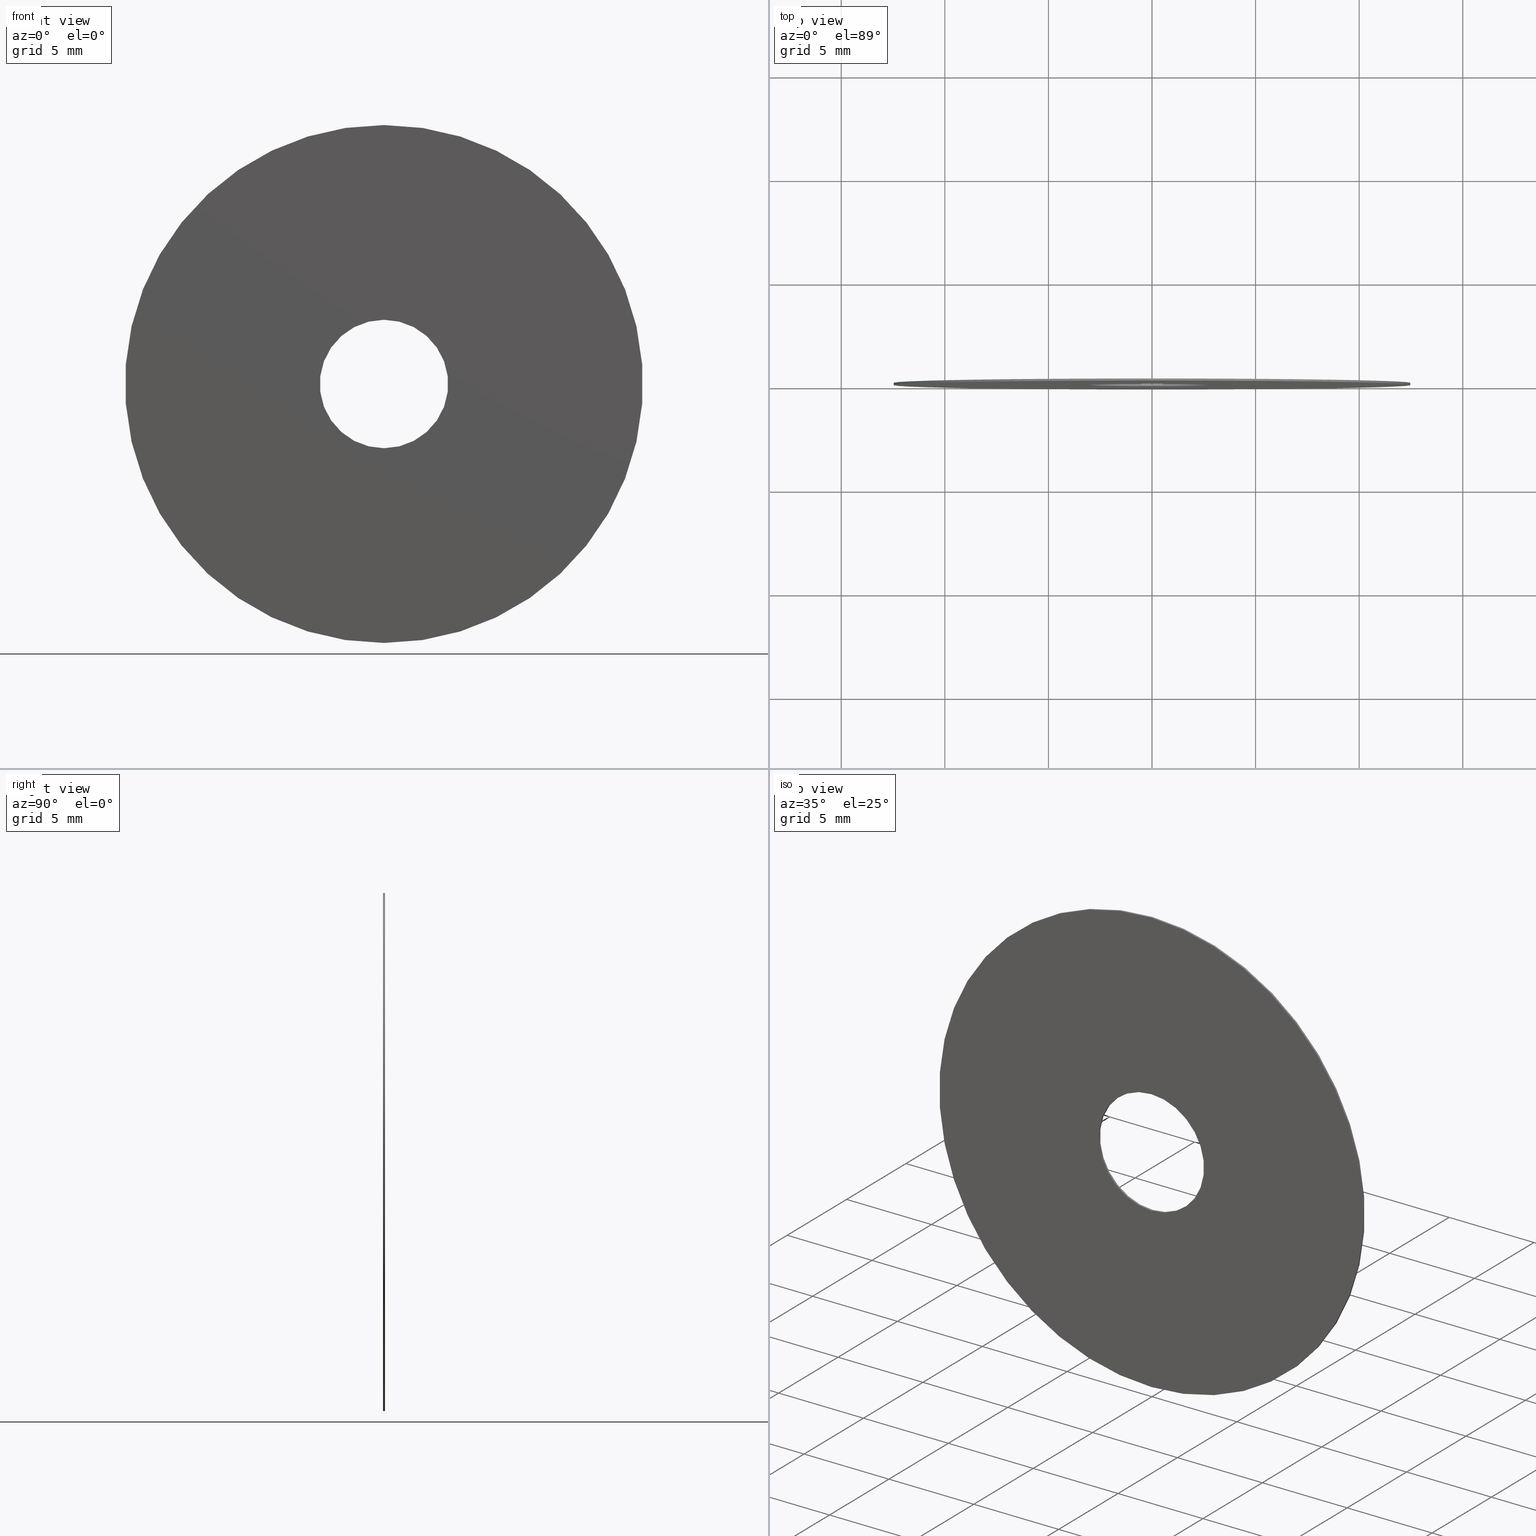
[diagram: canonical four-view strip — front | top / right | iso, engineering-drawing reading convention]
A machine part, canonical four-view strip (front | top / right | iso — engineering-drawing reading convention). The complete STEP part file that produces these views, byte-faithful:
ISO-10303-21;
HEADER;
FILE_DESCRIPTION (( 'STEP AP203' ),
    '1' );
FILE_NAME ('1.4.2.128-ZGH-25-DK0.1.STEP',
    '2024-04-06T05:15:39',
    ( '' ),
    ( '' ),
    'SwSTEP 2.0',
    'SolidWorks 2021',
    '' );
FILE_SCHEMA (( 'CONFIG_CONTROL_DESIGN' ));
ENDSEC;

DATA;
#1 = CALENDAR_DATE ( 2024, 6, 4 ) ;
#2 = DIRECTION ( 'NONE',  ( 0.000000000000000000, 1.000000000000000000, 0.000000000000000000 ) ) ;
#3 = EDGE_LOOP ( 'NONE', ( #98, #229, #65, #97 ) ) ;
#4 = EDGE_CURVE ( 'NONE', #136, #37, #45, .T. ) ;
#5 = PERSON_AND_ORGANIZATION ( #171, #106 ) ;
#6 = LOCAL_TIME ( 13, 15, 39.00000000000000000, #147 ) ;
#7 = EDGE_CURVE ( 'NONE', #109, #55, #134, .T. ) ;
#8 = FACE_BOUND ( 'NONE', #151, .T. ) ;
#9 = ORIENTED_EDGE ( 'NONE', *, *, #94, .F. ) ;
#10 = AXIS2_PLACEMENT_3D ( 'NONE', #63, #46, #199 ) ;
#11 = CARTESIAN_POINT ( 'NONE',  ( 0.000000000000000000, 0.05000000000000000278, -12.50000000000000000 ) ) ;
#12 = PERSON_AND_ORGANIZATION ( #171, #106 ) ;
#13 = DIRECTION ( 'NONE',  ( -0.000000000000000000, -1.000000000000000000, -0.000000000000000000 ) ) ;
#14 = APPLICATION_PROTOCOL_DEFINITION ( 'international standard', 'config_control_design', 1994, #185 ) ;
#15 = CIRCLE ( 'NONE', #194, 12.50000000000000000 ) ;
#16 = CC_DESIGN_PERSON_AND_ORGANIZATION_ASSIGNMENT ( #100, #187, ( #193 ) ) ;
#17 = DIRECTION ( 'NONE',  ( 0.000000000000000000, -0.000000000000000000, 1.000000000000000000 ) ) ;
#18 = CARTESIAN_POINT ( 'NONE',  ( 0.000000000000000000, -0.05000000000000000278, 0.000000000000000000 ) ) ;
#19 = CC_DESIGN_DATE_AND_TIME_ASSIGNMENT ( #170, #127, ( #30 ) ) ;
#20 = AXIS2_PLACEMENT_3D ( 'NONE', #169, #13, #122 ) ;
#21 = SECURITY_CLASSIFICATION ( '', '', #208 ) ;
#22 = PERSON_AND_ORGANIZATION_ROLE ( 'creator' ) ;
#23 = ORIENTED_EDGE ( 'NONE', *, *, #72, .F. ) ;
#24 = ORIENTED_EDGE ( 'NONE', *, *, #7, .F. ) ;
#25 = ORIENTED_EDGE ( 'NONE', *, *, #47, .T. ) ;
#26 = CIRCLE ( 'NONE', #149, 3.100000000000000089 ) ;
#27 = APPROVAL ( #210, 'δָ��' ) ;
#28 = DATE_AND_TIME ( #152, #177 ) ;
#29 = CARTESIAN_POINT ( 'NONE',  ( 0.000000000000000000, 0.05000000000000000278, -12.50000000000000000 ) ) ;
#30 = PRODUCT_DEFINITION ( 'δ֪', '', #165, #62 ) ;
#31 = LOCAL_TIME ( 13, 15, 39.00000000000000000, #39 ) ;
#32 = EDGE_LOOP ( 'NONE', ( #142, #225, #75, #148 ) ) ;
#33 = CARTESIAN_POINT ( 'NONE',  ( 3.796405077356794918E-16, 0.05000000000000000278, -3.100000000000000089 ) ) ;
#34 = ADVANCED_FACE ( 'NONE', ( #8, #85 ), #160, .T. ) ;
#35 = PLANE ( 'NONE',  #145 ) ;
#36 = CARTESIAN_POINT ( 'NONE',  ( 0.000000000000000000, 0.05000000000000000278, 3.100000000000000089 ) ) ;
#37 = VERTEX_POINT ( 'NONE', #66 ) ;
#38 = CARTESIAN_POINT ( 'NONE',  ( 0.000000000000000000, 0.000000000000000000, 0.000000000000000000 ) ) ;
#39 = COORDINATED_UNIVERSAL_TIME_OFFSET ( 8, 0, .AHEAD. ) ;
#40 = LOCAL_TIME ( 13, 15, 39.00000000000000000, #191 ) ;
#41 = CC_DESIGN_APPROVAL ( #123, ( #165 ) ) ;
#42 = DIRECTION ( 'NONE',  ( -0.000000000000000000, -1.000000000000000000, -0.000000000000000000 ) ) ;
#43 = CC_DESIGN_PERSON_AND_ORGANIZATION_ASSIGNMENT ( #195, #78, ( #21 ) ) ;
#44 = CALENDAR_DATE ( 2024, 6, 4 ) ;
#45 = LINE ( 'NONE', #11, #129 ) ;
#46 = DIRECTION ( 'NONE',  ( -0.000000000000000000, 1.000000000000000000, -0.000000000000000000 ) ) ;
#47 = EDGE_CURVE ( 'NONE', #49, #221, #119, .T. ) ;
#48 = CARTESIAN_POINT ( 'NONE',  ( 1.530808498934191521E-15, -0.05000000000000000278, 12.50000000000000000 ) ) ;
#49 = VERTEX_POINT ( 'NONE', #242 ) ;
#50 =( GEOMETRIC_REPRESENTATION_CONTEXT ( 3 ) GLOBAL_UNCERTAINTY_ASSIGNED_CONTEXT ( ( #96 ) ) GLOBAL_UNIT_ASSIGNED_CONTEXT ( ( #101, #230, #168 ) ) REPRESENTATION_CONTEXT ( 'NONE', 'WORKASPACE' ) );
#51 = CC_DESIGN_APPROVAL ( #27, ( #21 ) ) ;
#52 = CARTESIAN_POINT ( 'NONE',  ( 0.000000000000000000, -0.05000000000000000278, 0.000000000000000000 ) ) ;
#53 = LINE ( 'NONE', #141, #99 ) ;
#54 = CYLINDRICAL_SURFACE ( 'NONE', #20, 12.50000000000000000 ) ;
#55 = VERTEX_POINT ( 'NONE', #48 ) ;
#56 = DIRECTION ( 'NONE',  ( -0.000000000000000000, -1.000000000000000000, -0.000000000000000000 ) ) ;
#57 = CARTESIAN_POINT ( 'NONE',  ( 0.000000000000000000, 0.05000000000000000278, 0.000000000000000000 ) ) ;
#58 = APPROVAL_ROLE ( '' ) ;
#59 = APPROVAL_PERSON_ORGANIZATION ( #211, #123, #130 ) ;
#60 = DIRECTION ( 'NONE',  ( 0.000000000000000000, -0.000000000000000000, 1.000000000000000000 ) ) ;
#61 = ORIENTED_EDGE ( 'NONE', *, *, #94, .T. ) ;
#62 = DESIGN_CONTEXT ( 'detailed design', #185, 'design' ) ;
#63 = CARTESIAN_POINT ( 'NONE',  ( 0.000000000000000000, -0.05000000000000000278, 0.000000000000000000 ) ) ;
#64 = AXIS2_PLACEMENT_3D ( 'NONE', #121, #204, #87 ) ;
#65 = ORIENTED_EDGE ( 'NONE', *, *, #161, .T. ) ;
#66 = CARTESIAN_POINT ( 'NONE',  ( 0.000000000000000000, -0.05000000000000000278, -12.50000000000000000 ) ) ;
#67 = CYLINDRICAL_SURFACE ( 'NONE', #125, 12.50000000000000000 ) ;
#68 = EDGE_CURVE ( 'NONE', #221, #144, #215, .T. ) ;
#69 = CC_DESIGN_SECURITY_CLASSIFICATION ( #21, ( #165 ) ) ;
#70 = DIRECTION ( 'NONE',  ( 0.000000000000000000, 0.000000000000000000, 1.000000000000000000 ) ) ;
#71 = DIRECTION ( 'NONE',  ( -0.000000000000000000, 1.000000000000000000, -0.000000000000000000 ) ) ;
#72 = EDGE_CURVE ( 'NONE', #136, #109, #198, .T. ) ;
#73 = MECHANICAL_CONTEXT ( 'NONE', #157, 'mechanical' ) ;
#74 = DATE_TIME_ROLE ( 'classification_date' ) ;
#75 = ORIENTED_EDGE ( 'NONE', *, *, #226, .T. ) ;
#76 = CLOSED_SHELL ( 'NONE', ( #180, #197, #236, #34, #207, #153 ) ) ;
#77 = DIRECTION ( 'NONE',  ( 0.000000000000000000, 0.000000000000000000, 1.000000000000000000 ) ) ;
#78 = PERSON_AND_ORGANIZATION_ROLE ( 'classification_officer' ) ;
#79 = EDGE_LOOP ( 'NONE', ( #24, #23, #167, #61 ) ) ;
#80 = APPROVAL_ROLE ( '' ) ;
#81 = CIRCLE ( 'NONE', #95, 12.50000000000000000 ) ;
#82 = CARTESIAN_POINT ( 'NONE',  ( 1.530808498934191521E-15, 0.05000000000000000278, 12.50000000000000000 ) ) ;
#83 = ORIENTED_EDGE ( 'NONE', *, *, #161, .F. ) ;
#84 = VECTOR ( 'NONE', #42, 1000.000000000000000 ) ;
#85 = FACE_OUTER_BOUND ( 'NONE', #209, .T. ) ;
#86 = CYLINDRICAL_SURFACE ( 'NONE', #238, 3.100000000000000089 ) ;
#87 = DIRECTION ( 'NONE',  ( 0.000000000000000000, 0.000000000000000000, 1.000000000000000000 ) ) ;
#88 = DIRECTION ( 'NONE',  ( 0.000000000000000000, 1.000000000000000000, 0.000000000000000000 ) ) ;
#89 = COORDINATED_UNIVERSAL_TIME_OFFSET ( 8, 0, .AHEAD. ) ;
#90 = CARTESIAN_POINT ( 'NONE',  ( 1.530808498934191521E-15, 0.05000000000000000278, 12.50000000000000000 ) ) ;
#91 = DIRECTION ( 'NONE',  ( 0.000000000000000000, 0.000000000000000000, 1.000000000000000000 ) ) ;
#92 = CALENDAR_DATE ( 2024, 6, 4 ) ;
#93 = DIRECTION ( 'NONE',  ( 0.000000000000000000, 1.000000000000000000, 0.000000000000000000 ) ) ;
#94 = EDGE_CURVE ( 'NONE', #37, #55, #15, .T. ) ;
#95 = AXIS2_PLACEMENT_3D ( 'NONE', #200, #2, #234 ) ;
#96 = UNCERTAINTY_MEASURE_WITH_UNIT (LENGTH_MEASURE( 1.000000000000000082E-05 ), #101, 'distance_accuracy_value', 'NONE');
#97 = ORIENTED_EDGE ( 'NONE', *, *, #118, .T. ) ;
#98 = ORIENTED_EDGE ( 'NONE', *, *, #68, .F. ) ;
#99 = VECTOR ( 'NONE', #71, 1000.000000000000000 ) ;
#100 = PERSON_AND_ORGANIZATION ( #171, #106 ) ;
#101 =( LENGTH_UNIT ( ) NAMED_UNIT ( * ) SI_UNIT ( .MILLI., .METRE. ) );
#102 = ORIENTED_EDGE ( 'NONE', *, *, #72, .T. ) ;
#103 = CC_DESIGN_DATE_AND_TIME_ASSIGNMENT ( #28, #74, ( #21 ) ) ;
#104 = DIRECTION ( 'NONE',  ( 1.000000000000000000, 0.000000000000000000, 0.000000000000000000 ) ) ;
#105 = APPROVAL_DATE_TIME ( #233, #27 ) ;
#106 = ORGANIZATION ( 'δָ��', 'δָ��', '' ) ;
#107 = APPROVAL_DATE_TIME ( #133, #232 ) ;
#108 = PERSON_AND_ORGANIZATION ( #171, #106 ) ;
#109 = VERTEX_POINT ( 'NONE', #82 ) ;
#110 = DIRECTION ( 'NONE',  ( 0.000000000000000000, 1.000000000000000000, 0.000000000000000000 ) ) ;
#111 = APPROVAL_DATE_TIME ( #173, #123 ) ;
#112 = EDGE_CURVE ( 'NONE', #109, #136, #81, .T. ) ;
#113 = AXIS2_PLACEMENT_3D ( 'NONE', #115, #214, #77 ) ;
#114 = DIRECTION ( 'NONE',  ( 0.000000000000000000, 1.000000000000000000, 0.000000000000000000 ) ) ;
#115 = CARTESIAN_POINT ( 'NONE',  ( 0.000000000000000000, 0.05000000000000000278, 0.000000000000000000 ) ) ;
#116 = DIRECTION ( 'NONE',  ( 0.000000000000000000, 0.000000000000000000, 1.000000000000000000 ) ) ;
#117 = CARTESIAN_POINT ( 'NONE',  ( 3.796405077356794918E-16, -0.05000000000000000278, -3.100000000000000089 ) ) ;
#118 = EDGE_CURVE ( 'NONE', #239, #144, #26, .T. ) ;
#119 = CIRCLE ( 'NONE', #205, 3.100000000000000089 ) ;
#120 = DIRECTION ( 'NONE',  ( 0.000000000000000000, 1.000000000000000000, 0.000000000000000000 ) ) ;
#121 = CARTESIAN_POINT ( 'NONE',  ( 0.000000000000000000, 0.05000000000000000278, 0.000000000000000000 ) ) ;
#122 = DIRECTION ( 'NONE',  ( 0.000000000000000000, 0.000000000000000000, -1.000000000000000000 ) ) ;
#123 = APPROVAL ( #175, 'δָ��' ) ;
#124 = ORIENTED_EDGE ( 'NONE', *, *, #118, .F. ) ;
#125 = AXIS2_PLACEMENT_3D ( 'NONE', #57, #56, #138 ) ;
#126 = EDGE_LOOP ( 'NONE', ( #196, #154, #235, #83 ) ) ;
#127 = DATE_TIME_ROLE ( 'creation_date' ) ;
#128 = CC_DESIGN_PERSON_AND_ORGANIZATION_ASSIGNMENT ( #5, #22, ( #165 ) ) ;
#129 = VECTOR ( 'NONE', #179, 1000.000000000000000 ) ;
#130 = APPROVAL_ROLE ( '' ) ;
#131 = COORDINATED_UNIVERSAL_TIME_OFFSET ( 8, 0, .AHEAD. ) ;
#132 = DIRECTION ( 'NONE',  ( -0.000000000000000000, 1.000000000000000000, -0.000000000000000000 ) ) ;
#133 = DATE_AND_TIME ( #150, #40 ) ;
#134 = LINE ( 'NONE', #90, #84 ) ;
#135 = ORIENTED_EDGE ( 'NONE', *, *, #226, .F. ) ;
#136 = VERTEX_POINT ( 'NONE', #29 ) ;
#137 = DIRECTION ( 'NONE',  ( 0.000000000000000000, 1.000000000000000000, 0.000000000000000000 ) ) ;
#138 = DIRECTION ( 'NONE',  ( 0.000000000000000000, 0.000000000000000000, -1.000000000000000000 ) ) ;
#139 = APPROVAL_PERSON_ORGANIZATION ( #12, #232, #80 ) ;
#140 = LOCAL_TIME ( 13, 15, 39.00000000000000000, #89 ) ;
#141 = CARTESIAN_POINT ( 'NONE',  ( 0.000000000000000000, -0.05000000000000000278, 3.100000000000000089 ) ) ;
#142 = ORIENTED_EDGE ( 'NONE', *, *, #112, .F. ) ;
#143 = FACE_BOUND ( 'NONE', #190, .T. ) ;
#144 = VERTEX_POINT ( 'NONE', #33 ) ;
#145 = AXIS2_PLACEMENT_3D ( 'NONE', #227, #88, #17 ) ;
#146 = DIRECTION ( 'NONE',  ( 0.000000000000000000, 0.000000000000000000, 1.000000000000000000 ) ) ;
#147 = COORDINATED_UNIVERSAL_TIME_OFFSET ( 8, 0, .AHEAD. ) ;
#148 = ORIENTED_EDGE ( 'NONE', *, *, #4, .F. ) ;
#149 = AXIS2_PLACEMENT_3D ( 'NONE', #174, #114, #218 ) ;
#150 = CALENDAR_DATE ( 2024, 6, 4 ) ;
#151 = EDGE_LOOP ( 'NONE', ( #124, #192 ) ) ;
#152 = CALENDAR_DATE ( 2024, 6, 4 ) ;
#153 = ADVANCED_FACE ( 'NONE', ( #178 ), #159, .F. ) ;
#154 = ORIENTED_EDGE ( 'NONE', *, *, #68, .T. ) ;
#155 = PERSON_AND_ORGANIZATION ( #171, #106 ) ;
#156 = APPROVAL_PERSON_ORGANIZATION ( #213, #27, #58 ) ;
#157 = APPLICATION_CONTEXT ( 'configuration controlled 3d designs of mechanical parts and assemblies' ) ;
#158 = CC_DESIGN_PERSON_AND_ORGANIZATION_ASSIGNMENT ( #155, #237, ( #30 ) ) ;
#159 = CYLINDRICAL_SURFACE ( 'NONE', #10, 3.100000000000000089 ) ;
#160 = PLANE ( 'NONE',  #217 ) ;
#161 = EDGE_CURVE ( 'NONE', #49, #239, #53, .T. ) ;
#162 = CARTESIAN_POINT ( 'NONE',  ( 0.000000000000000000, 0.05000000000000000278, 0.000000000000000000 ) ) ;
#163 = FACE_OUTER_BOUND ( 'NONE', #126, .T. ) ;
#164 = FACE_OUTER_BOUND ( 'NONE', #247, .T. ) ;
#165 = PRODUCT_DEFINITION_FORMATION_WITH_SPECIFIED_SOURCE ( '�κ�', '', #193, .NOT_KNOWN. ) ;
#166 = CC_DESIGN_PERSON_AND_ORGANIZATION_ASSIGNMENT ( #108, #231, ( #165 ) ) ;
#167 = ORIENTED_EDGE ( 'NONE', *, *, #4, .T. ) ;
#168 =( NAMED_UNIT ( * ) SI_UNIT ( $, .STERADIAN. ) SOLID_ANGLE_UNIT ( ) );
#169 = CARTESIAN_POINT ( 'NONE',  ( 0.000000000000000000, 0.05000000000000000278, 0.000000000000000000 ) ) ;
#170 = DATE_AND_TIME ( #1, #31 ) ;
#171 = PERSON ( 'δָ��', 'δָ��', 'δָ��', ('δָ��'), ('δָ��'), ('δָ��') ) ;
#172 = CARTESIAN_POINT ( 'NONE',  ( 0.000000000000000000, -0.05000000000000000278, 0.000000000000000000 ) ) ;
#173 = DATE_AND_TIME ( #44, #140 ) ;
#174 = CARTESIAN_POINT ( 'NONE',  ( 0.000000000000000000, 0.05000000000000000278, 0.000000000000000000 ) ) ;
#175 = APPROVAL_STATUS ( 'not_yet_approved' ) ;
#176 = CC_DESIGN_APPROVAL ( #232, ( #30 ) ) ;
#177 = LOCAL_TIME ( 13, 15, 39.00000000000000000, #131 ) ;
#178 = FACE_OUTER_BOUND ( 'NONE', #3, .T. ) ;
#179 = DIRECTION ( 'NONE',  ( -0.000000000000000000, -1.000000000000000000, -0.000000000000000000 ) ) ;
#180 = ADVANCED_FACE ( 'NONE', ( #163 ), #86, .F. ) ;
#181 = PRODUCT_DEFINITION_SHAPE ( 'NONE', 'NONE',  #30 ) ;
#182 = ORIENTED_EDGE ( 'NONE', *, *, #112, .T. ) ;
#183 = CIRCLE ( 'NONE', #240, 12.50000000000000000 ) ;
#184 = CARTESIAN_POINT ( 'NONE',  ( 0.000000000000000000, -0.05000000000000000278, 0.000000000000000000 ) ) ;
#185 = APPLICATION_CONTEXT ( 'configuration controlled 3d designs of mechanical parts and assemblies' ) ;
#186 = DIRECTION ( 'NONE',  ( -0.000000000000000000, 1.000000000000000000, -0.000000000000000000 ) ) ;
#187 = PERSON_AND_ORGANIZATION_ROLE ( 'design_owner' ) ;
#188 = CIRCLE ( 'NONE', #64, 3.100000000000000089 ) ;
#189 = SHAPE_DEFINITION_REPRESENTATION ( #181, #201 ) ;
#190 = EDGE_LOOP ( 'NONE', ( #25, #241 ) ) ;
#191 = COORDINATED_UNIVERSAL_TIME_OFFSET ( 8, 0, .AHEAD. ) ;
#192 = ORIENTED_EDGE ( 'NONE', *, *, #212, .F. ) ;
#193 = PRODUCT ( '1.4.2.128-ZGH-25-DK0.1', '1.4.2.128-ZGH-25-DK0.1', '', ( #73 ) ) ;
#194 = AXIS2_PLACEMENT_3D ( 'NONE', #172, #93, #116 ) ;
#195 = PERSON_AND_ORGANIZATION ( #171, #106 ) ;
#196 = ORIENTED_EDGE ( 'NONE', *, *, #216, .F. ) ;
#197 = ADVANCED_FACE ( 'NONE', ( #224 ), #54, .T. ) ;
#198 = CIRCLE ( 'NONE', #113, 12.50000000000000000 ) ;
#199 = DIRECTION ( 'NONE',  ( 0.000000000000000000, 0.000000000000000000, 1.000000000000000000 ) ) ;
#200 = CARTESIAN_POINT ( 'NONE',  ( 0.000000000000000000, 0.05000000000000000278, 0.000000000000000000 ) ) ;
#201 = ADVANCED_BREP_SHAPE_REPRESENTATION ( '1.4.2.128-ZGH-25-DK0.1', ( #219, #223 ), #50 ) ;
#202 = VECTOR ( 'NONE', #132, 1000.000000000000000 ) ;
#203 = DIRECTION ( 'NONE',  ( 0.000000000000000000, 0.000000000000000000, 1.000000000000000000 ) ) ;
#204 = DIRECTION ( 'NONE',  ( 0.000000000000000000, 1.000000000000000000, 0.000000000000000000 ) ) ;
#205 = AXIS2_PLACEMENT_3D ( 'NONE', #220, #110, #91 ) ;
#206 = DIRECTION ( 'NONE',  ( 0.000000000000000000, 1.000000000000000000, 0.000000000000000000 ) ) ;
#207 = ADVANCED_FACE ( 'NONE', ( #143, #164 ), #35, .F. ) ;
#208 = SECURITY_CLASSIFICATION_LEVEL ( 'unclassified' ) ;
#209 = EDGE_LOOP ( 'NONE', ( #102, #182 ) ) ;
#210 = APPROVAL_STATUS ( 'not_yet_approved' ) ;
#211 = PERSON_AND_ORGANIZATION ( #171, #106 ) ;
#212 = EDGE_CURVE ( 'NONE', #144, #239, #188, .T. ) ;
#213 = PERSON_AND_ORGANIZATION ( #171, #106 ) ;
#214 = DIRECTION ( 'NONE',  ( 0.000000000000000000, 1.000000000000000000, 0.000000000000000000 ) ) ;
#215 = LINE ( 'NONE', #117, #202 ) ;
#216 = EDGE_CURVE ( 'NONE', #221, #49, #249, .T. ) ;
#217 = AXIS2_PLACEMENT_3D ( 'NONE', #162, #137, #60 ) ;
#218 = DIRECTION ( 'NONE',  ( 0.000000000000000000, 0.000000000000000000, 1.000000000000000000 ) ) ;
#219 = MANIFOLD_SOLID_BREP ( '�г�-����3', #76 ) ;
#220 = CARTESIAN_POINT ( 'NONE',  ( 0.000000000000000000, -0.05000000000000000278, 0.000000000000000000 ) ) ;
#221 = VERTEX_POINT ( 'NONE', #222 ) ;
#222 = CARTESIAN_POINT ( 'NONE',  ( 3.796405077356794918E-16, -0.05000000000000000278, -3.100000000000000089 ) ) ;
#223 = AXIS2_PLACEMENT_3D ( 'NONE', #38, #203, #104 ) ;
#224 = FACE_OUTER_BOUND ( 'NONE', #32, .T. ) ;
#225 = ORIENTED_EDGE ( 'NONE', *, *, #7, .T. ) ;
#226 = EDGE_CURVE ( 'NONE', #55, #37, #183, .T. ) ;
#227 = CARTESIAN_POINT ( 'NONE',  ( 0.000000000000000000, -0.05000000000000000278, 0.000000000000000000 ) ) ;
#228 = PRODUCT_RELATED_PRODUCT_CATEGORY ( 'detail', '', ( #193 ) ) ;
#229 = ORIENTED_EDGE ( 'NONE', *, *, #47, .F. ) ;
#230 =( NAMED_UNIT ( * ) PLANE_ANGLE_UNIT ( ) SI_UNIT ( $, .RADIAN. ) );
#231 = PERSON_AND_ORGANIZATION_ROLE ( 'design_supplier' ) ;
#232 = APPROVAL ( #246, 'δָ��' ) ;
#233 = DATE_AND_TIME ( #92, #6 ) ;
#234 = DIRECTION ( 'NONE',  ( 0.000000000000000000, 0.000000000000000000, 1.000000000000000000 ) ) ;
#235 = ORIENTED_EDGE ( 'NONE', *, *, #212, .T. ) ;
#236 = ADVANCED_FACE ( 'NONE', ( #244 ), #67, .T. ) ;
#237 = PERSON_AND_ORGANIZATION_ROLE ( 'creator' ) ;
#238 = AXIS2_PLACEMENT_3D ( 'NONE', #52, #186, #70 ) ;
#239 = VERTEX_POINT ( 'NONE', #36 ) ;
#240 = AXIS2_PLACEMENT_3D ( 'NONE', #184, #206, #243 ) ;
#241 = ORIENTED_EDGE ( 'NONE', *, *, #216, .T. ) ;
#242 = CARTESIAN_POINT ( 'NONE',  ( 0.000000000000000000, -0.05000000000000000278, 3.100000000000000089 ) ) ;
#243 = DIRECTION ( 'NONE',  ( 0.000000000000000000, 0.000000000000000000, 1.000000000000000000 ) ) ;
#244 = FACE_OUTER_BOUND ( 'NONE', #79, .T. ) ;
#245 = AXIS2_PLACEMENT_3D ( 'NONE', #18, #120, #146 ) ;
#246 = APPROVAL_STATUS ( 'not_yet_approved' ) ;
#247 = EDGE_LOOP ( 'NONE', ( #9, #135 ) ) ;
#248 = APPLICATION_PROTOCOL_DEFINITION ( 'international standard', 'config_control_design', 1994, #157 ) ;
#249 = CIRCLE ( 'NONE', #245, 3.100000000000000089 ) ;
ENDSEC;
END-ISO-10303-21;
